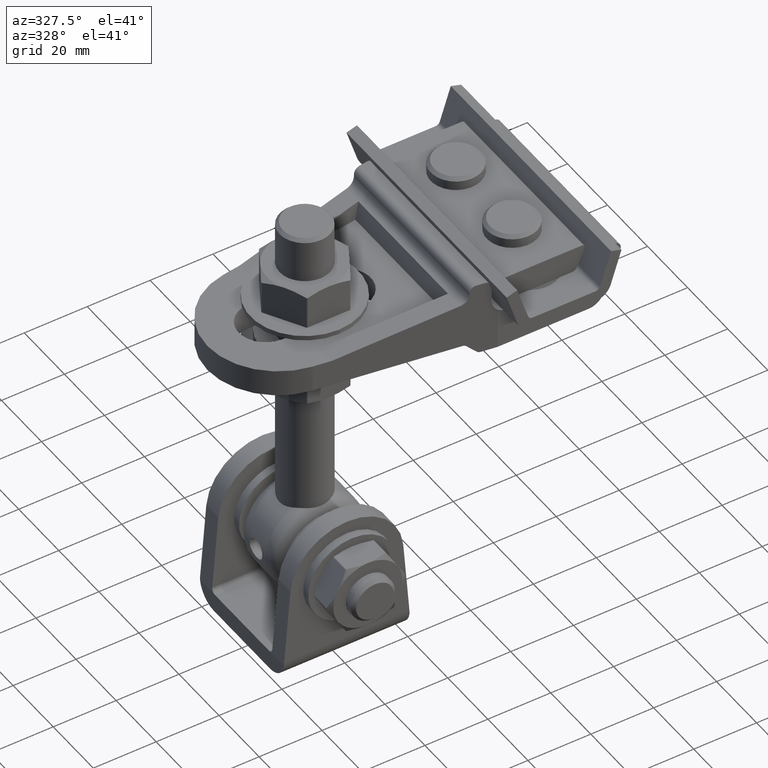
[diagram: clean part render]
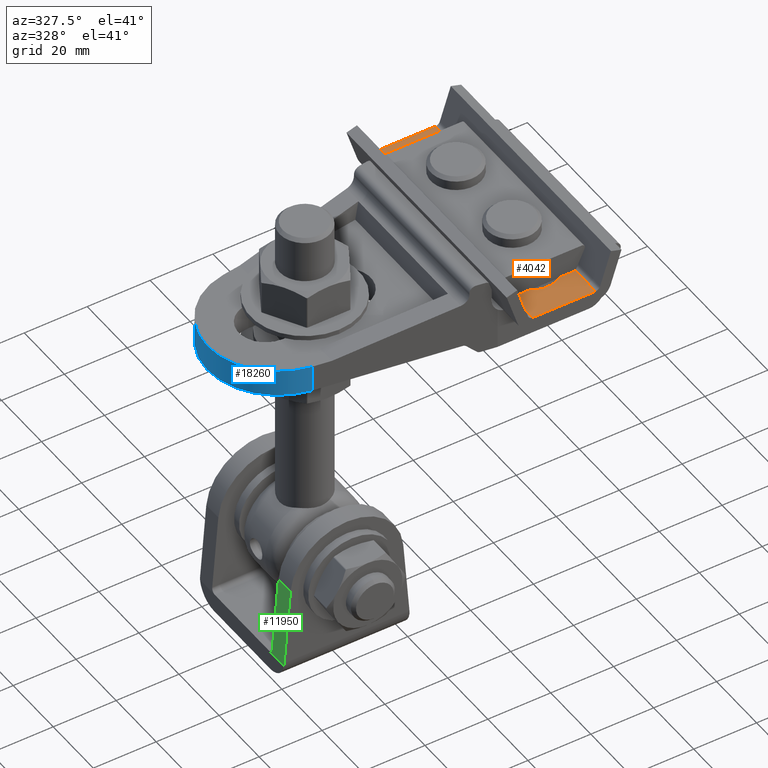
[diagram: same view with three faces highlighted in distinct colors, each labeled with its STEP entity id]
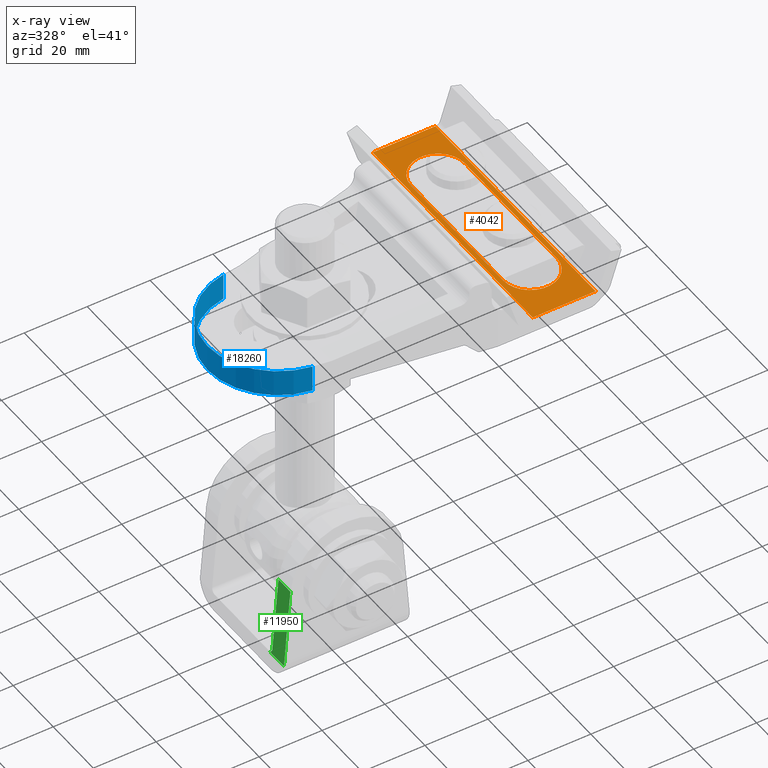
[diagram: x-ray of the same camera — body ghosted, the three highlighted faces saturated]
A machine part, auxiliary view with three faces highlighted in distinct colors.
The next image is the same camera in x-ray (body ghosted, the three faces saturated) — at least one of them is partly hidden behind the body in this view.
Their STEP definitions:

[orange] entity #4042 — the highlighted planar face has unit normal (-0, -0, -1).
#400 = FACE_BOUND ( 'NONE', #19680, .T. ) ;
#500 = EDGE_CURVE ( 'NONE', #13756, #3328, #2721, .T. ) ;
#544 = VECTOR ( 'NONE', #13654, 1000.000000000000000 ) ;
#576 = DIRECTION ( 'NONE',  ( 1.000000000000000000, 0.000000000000000000, -1.275531967630004259E-16 ) ) ;
#603 = LINE ( 'NONE', #19074, #19487 ) ;
#778 = CARTESIAN_POINT ( 'NONE',  ( 10.00000000000000355, 40.00000000000000000, -1.750000000000001554 ) ) ;
#1064 = LINE ( 'NONE', #15259, #544 ) ;
#1143 = LINE ( 'NONE', #778, #3190 ) ;
#1726 = EDGE_LOOP ( 'NONE', ( #20646, #15206, #17880, #10160 ) ) ;
#2026 = CARTESIAN_POINT ( 'NONE',  ( -9.999999999999996447, 40.00000000000000000, -1.749999999999999556 ) ) ;
#2232 = CARTESIAN_POINT ( 'NONE',  ( -8.500000000000001776, -23.00000000000000000, -1.749999999999999778 ) ) ;
#2622 = CARTESIAN_POINT ( 'NONE',  ( -9.999999999999996447, 40.00000000000000000, -1.749999999999999556 ) ) ;
#2721 = LINE ( 'NONE', #3838, #12820 ) ;
#3034 = DIRECTION ( 'NONE',  ( 1.000000000000000000, 0.000000000000000000, -1.275531967630004259E-16 ) ) ;
#3102 = CARTESIAN_POINT ( 'NONE',  ( 3.005574281395106688E-16, -23.00000000000000000, -1.750000000000001554 ) ) ;
#3116 = DIRECTION ( 'NONE',  ( -0.000000000000000000, -1.000000000000000000, -0.000000000000000000 ) ) ;
#3190 = VECTOR ( 'NONE', #20286, 1000.000000000000000 ) ;
#3328 = VERTEX_POINT ( 'NONE', #2622 ) ;
#3655 = CARTESIAN_POINT ( 'NONE',  ( -9.999999999999996447, -40.00000000000000000, -1.749999999999999556 ) ) ;
#3838 = CARTESIAN_POINT ( 'NONE',  ( -9.999999999999996447, 40.00000000000000000, -1.749999999999999556 ) ) ;
#3904 = CARTESIAN_POINT ( 'NONE',  ( -2.516130209899401782E-15, 23.00000000000000000, -1.750000000000001554 ) ) ;
#4042 = ADVANCED_FACE ( 'NONE', ( #400, #10513 ), #11768, .F. ) ;
#4224 = EDGE_CURVE ( 'NONE', #6389, #7963, #5224, .T. ) ;
#4970 = CARTESIAN_POINT ( 'NONE',  ( 8.500000000000012434, -22.99999999999999645, -1.750000000000003331 ) ) ;
#5204 = CARTESIAN_POINT ( 'NONE',  ( 10.00000000000000355, 40.00000000000000000, -1.750000000000001554 ) ) ;
#5224 = LINE ( 'NONE', #13801, #18037 ) ;
#5965 = CIRCLE ( 'NONE', #14910, 8.500000000000007105 ) ;
#6389 = VERTEX_POINT ( 'NONE', #4970 ) ;
#6677 = EDGE_CURVE ( 'NONE', #7963, #19275, #19742, .T. ) ;
#6972 = AXIS2_PLACEMENT_3D ( 'NONE', #2026, #10164, #8602 ) ;
#7963 = VERTEX_POINT ( 'NONE', #19066 ) ;
#8602 = DIRECTION ( 'NONE',  ( 1.000000000000000000, 0.000000000000000000, -1.192622389734054877E-16 ) ) ;
#9754 = VERTEX_POINT ( 'NONE', #19948 ) ;
#9800 = AXIS2_PLACEMENT_3D ( 'NONE', #3904, #10254, #576 ) ;
#10160 = ORIENTED_EDGE ( 'NONE', *, *, #14693, .T. ) ;
#10164 = DIRECTION ( 'NONE',  ( 1.192622389734054877E-16, -0.000000000000000000, 1.000000000000000000 ) ) ;
#10254 = DIRECTION ( 'NONE',  ( 1.192622389734054877E-16, -0.000000000000000000, 1.000000000000000000 ) ) ;
#10513 = FACE_OUTER_BOUND ( 'NONE', #1726, .T. ) ;
#10817 = VERTEX_POINT ( 'NONE', #2232 ) ;
#10908 = EDGE_CURVE ( 'NONE', #19275, #10817, #1064, .T. ) ;
#11472 = LINE ( 'NONE', #3655, #19238 ) ;
#11484 = CARTESIAN_POINT ( 'NONE',  ( -9.999999999999996447, -40.00000000000000000, -1.749999999999999556 ) ) ;
#11768 = PLANE ( 'NONE',  #6972 ) ;
#12253 = DIRECTION ( 'NONE',  ( -0.000000000000000000, 1.000000000000000000, 0.000000000000000000 ) ) ;
#12820 = VECTOR ( 'NONE', #13475, 1000.000000000000000 ) ;
#13475 = DIRECTION ( 'NONE',  ( -1.000000000000000000, -0.000000000000000000, 1.192622389734054877E-16 ) ) ;
#13599 = ORIENTED_EDGE ( 'NONE', *, *, #4224, .T. ) ;
#13654 = DIRECTION ( 'NONE',  ( 0.000000000000000000, -1.000000000000000000, 0.000000000000000000 ) ) ;
#13756 = VERTEX_POINT ( 'NONE', #5204 ) ;
#13801 = CARTESIAN_POINT ( 'NONE',  ( 8.500000000000012434, 40.00000000000000000, -1.750000000000001776 ) ) ;
#14693 = EDGE_CURVE ( 'NONE', #13756, #9754, #1143, .T. ) ;
#14910 = AXIS2_PLACEMENT_3D ( 'NONE', #3102, #17445, #3034 ) ;
#14956 = EDGE_CURVE ( 'NONE', #10817, #6389, #5965, .T. ) ;
#15134 = VERTEX_POINT ( 'NONE', #11484 ) ;
#15206 = ORIENTED_EDGE ( 'NONE', *, *, #16459, .F. ) ;
#15259 = CARTESIAN_POINT ( 'NONE',  ( -8.500000000000001776, 40.00000000000000000, -1.749999999999999778 ) ) ;
#15578 = ORIENTED_EDGE ( 'NONE', *, *, #6677, .T. ) ;
#15907 = EDGE_CURVE ( 'NONE', #9754, #15134, #11472, .T. ) ;
#16435 = DIRECTION ( 'NONE',  ( -1.000000000000000000, -0.000000000000000000, 1.192622389734054877E-16 ) ) ;
#16459 = EDGE_CURVE ( 'NONE', #3328, #15134, #603, .T. ) ;
#17445 = DIRECTION ( 'NONE',  ( 1.192622389734054877E-16, -0.000000000000000000, 1.000000000000000000 ) ) ;
#17627 = CARTESIAN_POINT ( 'NONE',  ( -8.500000000000001776, 23.00000000000000000, -1.749999999999999778 ) ) ;
#17880 = ORIENTED_EDGE ( 'NONE', *, *, #500, .F. ) ;
#18037 = VECTOR ( 'NONE', #12253, 1000.000000000000000 ) ;
#19066 = CARTESIAN_POINT ( 'NONE',  ( 8.500000000000012434, 22.99999999999999645, -1.750000000000001554 ) ) ;
#19074 = CARTESIAN_POINT ( 'NONE',  ( -9.999999999999996447, 40.00000000000000000, -1.749999999999999556 ) ) ;
#19238 = VECTOR ( 'NONE', #16435, 1000.000000000000000 ) ;
#19275 = VERTEX_POINT ( 'NONE', #17627 ) ;
#19487 = VECTOR ( 'NONE', #3116, 1000.000000000000000 ) ;
#19680 = EDGE_LOOP ( 'NONE', ( #13599, #15578, #20267, #20666 ) ) ;
#19742 = CIRCLE ( 'NONE', #9800, 8.500000000000007105 ) ;
#19948 = CARTESIAN_POINT ( 'NONE',  ( 10.00000000000000355, -40.00000000000000000, -1.750000000000001554 ) ) ;
#20267 = ORIENTED_EDGE ( 'NONE', *, *, #10908, .T. ) ;
#20286 = DIRECTION ( 'NONE',  ( -0.000000000000000000, -1.000000000000000000, -0.000000000000000000 ) ) ;
#20646 = ORIENTED_EDGE ( 'NONE', *, *, #15907, .T. ) ;
#20666 = ORIENTED_EDGE ( 'NONE', *, *, #14956, .T. ) ;

[blue] entity #18260 — the highlighted cylindrical surface (partial cylindrical patch) has radius 22.5 mm, axis along (0, -0, -1).
#467 = DIRECTION ( 'NONE',  ( -0.000000000000000000, -0.000000000000000000, 1.000000000000000000 ) ) ;
#1169 = AXIS2_PLACEMENT_3D ( 'NONE', #5800, #2523, #10716 ) ;
#1194 = LINE ( 'NONE', #3933, #14065 ) ;
#1349 = DIRECTION ( 'NONE',  ( -0.000000000000000000, -0.000000000000000000, 1.000000000000000000 ) ) ;
#1441 = EDGE_CURVE ( 'NONE', #3844, #15929, #1194, .T. ) ;
#2523 = DIRECTION ( 'NONE',  ( 9.637352644315596475E-17, -0.000000000000000000, 1.000000000000000000 ) ) ;
#2578 = CARTESIAN_POINT ( 'NONE',  ( 34.00000000000000000, 0.000000000000000000, -1.999999999999996669 ) ) ;
#2620 = VECTOR ( 'NONE', #1349, 1000.000000000000000 ) ;
#2892 = CARTESIAN_POINT ( 'NONE',  ( 37.19240036609348010, -22.27237257012746952, -1.999999999999996669 ) ) ;
#3074 = AXIS2_PLACEMENT_3D ( 'NONE', #10143, #467, #19614 ) ;
#3844 = VERTEX_POINT ( 'NONE', #2892 ) ;
#3933 = CARTESIAN_POINT ( 'NONE',  ( 37.19240036609348010, -22.27237257012746952, -13.50000000000000000 ) ) ;
#4380 = AXIS2_PLACEMENT_3D ( 'NONE', #2578, #12037, #16791 ) ;
#5800 = CARTESIAN_POINT ( 'NONE',  ( 34.00000000000000000, 0.000000000000000000, 6.500000000000007105 ) ) ;
#6293 = EDGE_CURVE ( 'NONE', #8126, #7794, #15466, .T. ) ;
#7688 = CARTESIAN_POINT ( 'NONE',  ( 37.19240036609347300, 22.27237257012746596, -1.999999999999996669 ) ) ;
#7794 = VERTEX_POINT ( 'NONE', #16688 ) ;
#7875 = CIRCLE ( 'NONE', #1169, 22.50000000000000000 ) ;
#8126 = VERTEX_POINT ( 'NONE', #7688 ) ;
#10143 = CARTESIAN_POINT ( 'NONE',  ( 34.00000000000000000, 0.000000000000000000, -13.50000000000000000 ) ) ;
#10416 = DIRECTION ( 'NONE',  ( -0.000000000000000000, -0.000000000000000000, 1.000000000000000000 ) ) ;
#10716 = DIRECTION ( 'NONE',  ( -1.000000000000000000, 0.000000000000000000, 1.156482317317871478E-16 ) ) ;
#12037 = DIRECTION ( 'NONE',  ( -0.000000000000000000, -0.000000000000000000, -1.000000000000000000 ) ) ;
#12126 = EDGE_LOOP ( 'NONE', ( #19640, #20322, #13295, #17159 ) ) ;
#13039 = EDGE_CURVE ( 'NONE', #8126, #3844, #14534, .T. ) ;
#13295 = ORIENTED_EDGE ( 'NONE', *, *, #13039, .F. ) ;
#14065 = VECTOR ( 'NONE', #10416, 1000.000000000000000 ) ;
#14534 = CIRCLE ( 'NONE', #4380, 22.50000000000000000 ) ;
#15466 = LINE ( 'NONE', #18876, #2620 ) ;
#15929 = VERTEX_POINT ( 'NONE', #19539 ) ;
#16688 = CARTESIAN_POINT ( 'NONE',  ( 37.19240036609347300, 22.27237257012746596, 6.500000000000010658 ) ) ;
#16791 = DIRECTION ( 'NONE',  ( 1.000000000000000000, 0.000000000000000000, 0.000000000000000000 ) ) ;
#17159 = ORIENTED_EDGE ( 'NONE', *, *, #6293, .T. ) ;
#18234 = CYLINDRICAL_SURFACE ( 'NONE', #3074, 22.50000000000000000 ) ;
#18260 = ADVANCED_FACE ( 'NONE', ( #18478 ), #18234, .T. ) ;
#18478 = FACE_OUTER_BOUND ( 'NONE', #12126, .T. ) ;
#18876 = CARTESIAN_POINT ( 'NONE',  ( 37.19240036609347300, 22.27237257012746596, -13.50000000000000000 ) ) ;
#19539 = CARTESIAN_POINT ( 'NONE',  ( 37.19240036609348010, -22.27237257012746952, 6.500000000000010658 ) ) ;
#19614 = DIRECTION ( 'NONE',  ( 1.000000000000000000, 0.000000000000000000, 0.000000000000000000 ) ) ;
#19640 = ORIENTED_EDGE ( 'NONE', *, *, #19835, .F. ) ;
#19835 = EDGE_CURVE ( 'NONE', #15929, #7794, #7875, .T. ) ;
#20322 = ORIENTED_EDGE ( 'NONE', *, *, #1441, .F. ) ;

[green] entity #11950 — the highlighted planar face has unit normal (0.9967, 0, -0.0806).
#433 = DIRECTION ( 'NONE',  ( -0.08062071044277467624, 0.000000000000000000, -0.9967448525313298280 ) ) ;
#978 = ORIENTED_EDGE ( 'NONE', *, *, #14994, .T. ) ;
#1284 = ORIENTED_EDGE ( 'NONE', *, *, #19257, .T. ) ;
#2482 = FACE_OUTER_BOUND ( 'NONE', #5064, .T. ) ;
#2640 = CARTESIAN_POINT ( 'NONE',  ( -19.99999999999999645, -20.92820323027551410, 5.999999999999998224 ) ) ;
#2682 = EDGE_CURVE ( 'NONE', #5663, #7116, #5242, .T. ) ;
#2927 = CARTESIAN_POINT ( 'NONE',  ( -19.91911600021004958, -21.00000000000000000, 6.999999999999995559 ) ) ;
#3488 = VERTEX_POINT ( 'NONE', #15855 ) ;
#5064 = EDGE_LOOP ( 'NONE', ( #16128, #1284, #18668, #11746, #13913, #978 ) ) ;
#5242 = LINE ( 'NONE', #9641, #17544 ) ;
#5663 = VERTEX_POINT ( 'NONE', #12257 ) ;
#6480 = VERTEX_POINT ( 'NONE', #19228 ) ;
#7116 = VERTEX_POINT ( 'NONE', #8178 ) ;
#7400 = VECTOR ( 'NONE', #11664, 1000.000000000000114 ) ;
#7900 = LINE ( 'NONE', #15025, #7400 ) ;
#8178 = CARTESIAN_POINT ( 'NONE',  ( -17.94140734556393468, -15.00000000000000533, 31.45117278796995208 ) ) ;
#8772 = VERTEX_POINT ( 'NONE', #11545 ) ;
#9004 = CARTESIAN_POINT ( 'NONE',  ( -19.97320064089551295, -20.97602670968202432, 6.331330784507199994 ) ) ;
#9451 = CARTESIAN_POINT ( 'NONE',  ( -19.87867400031507259, -15.00000000000000178, 7.499999999999997335 ) ) ;
#9641 = CARTESIAN_POINT ( 'NONE',  ( -17.94140734556393468, -21.00000000000000000, 31.45117278796995208 ) ) ;
#10113 = CARTESIAN_POINT ( 'NONE',  ( -20.35215568980157030, -21.00000000000000000, 1.646163756538875589 ) ) ;
#10166 = LINE ( 'NONE', #15689, #17410 ) ;
#10263 = CARTESIAN_POINT ( 'NONE',  ( -20.35215568980157030, -21.00000000000000000, 1.646163756538875589 ) ) ;
#10694 = VERTEX_POINT ( 'NONE', #14635 ) ;
#10751 = VECTOR ( 'NONE', #433, 999.9999999999998863 ) ;
#11545 = CARTESIAN_POINT ( 'NONE',  ( -19.87867400031507259, -15.00000000000000178, 7.499999999999997335 ) ) ;
#11664 = DIRECTION ( 'NONE',  ( 0.08062071044277467624, -1.646739709757274318E-16, 0.9967448525313297170 ) ) ;
#11746 = ORIENTED_EDGE ( 'NONE', *, *, #2682, .T. ) ;
#11801 = DIRECTION ( 'NONE',  ( -0.08062071044277467624, 0.000000000000000000, -0.9967448525313297170 ) ) ;
#11950 = ADVANCED_FACE ( 'NONE', ( #2482 ), #16763, .F. ) ;
#12257 = CARTESIAN_POINT ( 'NONE',  ( -17.94140734556393468, -21.00000000000000000, 31.45117278796995208 ) ) ;
#13913 = ORIENTED_EDGE ( 'NONE', *, *, #19541, .F. ) ;
#14261 = CARTESIAN_POINT ( 'NONE',  ( -19.94619308029794169, -21.00000000000000000, 6.665235644154423156 ) ) ;
#14420 = CARTESIAN_POINT ( 'NONE',  ( -20.00000000000000000, -13.49999999999999645, 5.999999999999996447 ) ) ;
#14543 = EDGE_CURVE ( 'NONE', #5663, #10694, #17769, .T. ) ;
#14635 = CARTESIAN_POINT ( 'NONE',  ( -19.91911600021004958, -21.00000000000000000, 6.999999999999995559 ) ) ;
#14994 = EDGE_CURVE ( 'NONE', #8772, #6480, #17722, .T. ) ;
#15025 = CARTESIAN_POINT ( 'NONE',  ( -19.74001204190808423, -15.00000000000000178, 9.214331125650176091 ) ) ;
#15616 = DIRECTION ( 'NONE',  ( -0.000000000000000000, 1.000000000000000000, -0.000000000000000000 ) ) ;
#15689 = CARTESIAN_POINT ( 'NONE',  ( -19.99999999999999645, -21.00000000000000000, 5.999999999999998224 ) ) ;
#15855 = CARTESIAN_POINT ( 'NONE',  ( -19.99999999999999645, -20.92820323027551410, 5.999999999999998224 ) ) ;
#16128 = ORIENTED_EDGE ( 'NONE', *, *, #20429, .F. ) ;
#16763 = PLANE ( 'NONE',  #17702 ) ;
#17410 = VECTOR ( 'NONE', #15616, 1000.000000000000000 ) ;
#17519 = CARTESIAN_POINT ( 'NONE',  ( -19.94974512546203016, -15.00000000000000000, 6.621320343559636612 ) ) ;
#17544 = VECTOR ( 'NONE', #19244, 1000.000000000000000 ) ;
#17702 = AXIS2_PLACEMENT_3D ( 'NONE', #10263, #18245, #11801 ) ;
#17722 =( BOUNDED_CURVE ( )  B_SPLINE_CURVE ( 3, ( #9451, #17519, #20709, #14420 ),
 .UNSPECIFIED., .F., .F. ) 
 B_SPLINE_CURVE_WITH_KNOTS ( ( 4, 4 ),
 ( 1.570796326794896336, 3.141592653589796669 ),
 .UNSPECIFIED. ) 
 CURVE ( )  GEOMETRIC_REPRESENTATION_ITEM ( )  RATIONAL_B_SPLINE_CURVE ( ( 1.000000000000000000, 0.8047378541243640493, 0.8047378541243640493, 1.000000000000000000 ) ) 
 REPRESENTATION_ITEM ( '' )  );
#17769 = LINE ( 'NONE', #10113, #10751 ) ;
#18245 = DIRECTION ( 'NONE',  ( 0.9967448525313297170, 0.000000000000000000, -0.08062071044277467624 ) ) ;
#18668 = ORIENTED_EDGE ( 'NONE', *, *, #14543, .F. ) ;
#18997 =( BOUNDED_CURVE ( )  B_SPLINE_CURVE ( 3, ( #2640, #9004, #14261, #2927 ),
 .UNSPECIFIED., .F., .F. ) 
 B_SPLINE_CURVE_WITH_KNOTS ( ( 4, 4 ),
 ( 1.427448757889531850, 1.570796326794896780 ),
 .UNSPECIFIED. ) 
 CURVE ( )  GEOMETRIC_REPRESENTATION_ITEM ( )  RATIONAL_B_SPLINE_CURVE ( ( 1.000000000000000000, 0.9982883558074162611, 0.9982883558074162611, 1.000000000000000000 ) ) 
 REPRESENTATION_ITEM ( '' )  );
#19228 = CARTESIAN_POINT ( 'NONE',  ( -20.00000000000000000, -13.49999999999999645, 5.999999999999996447 ) ) ;
#19244 = DIRECTION ( 'NONE',  ( -0.000000000000000000, 1.000000000000000000, -0.000000000000000000 ) ) ;
#19257 = EDGE_CURVE ( 'NONE', #3488, #10694, #18997, .T. ) ;
#19541 = EDGE_CURVE ( 'NONE', #8772, #7116, #7900, .T. ) ;
#20429 = EDGE_CURVE ( 'NONE', #3488, #6480, #10166, .T. ) ;
#20709 = CARTESIAN_POINT ( 'NONE',  ( -19.99999999999999645, -14.37867965644035451, 5.999999999999992895 ) ) ;